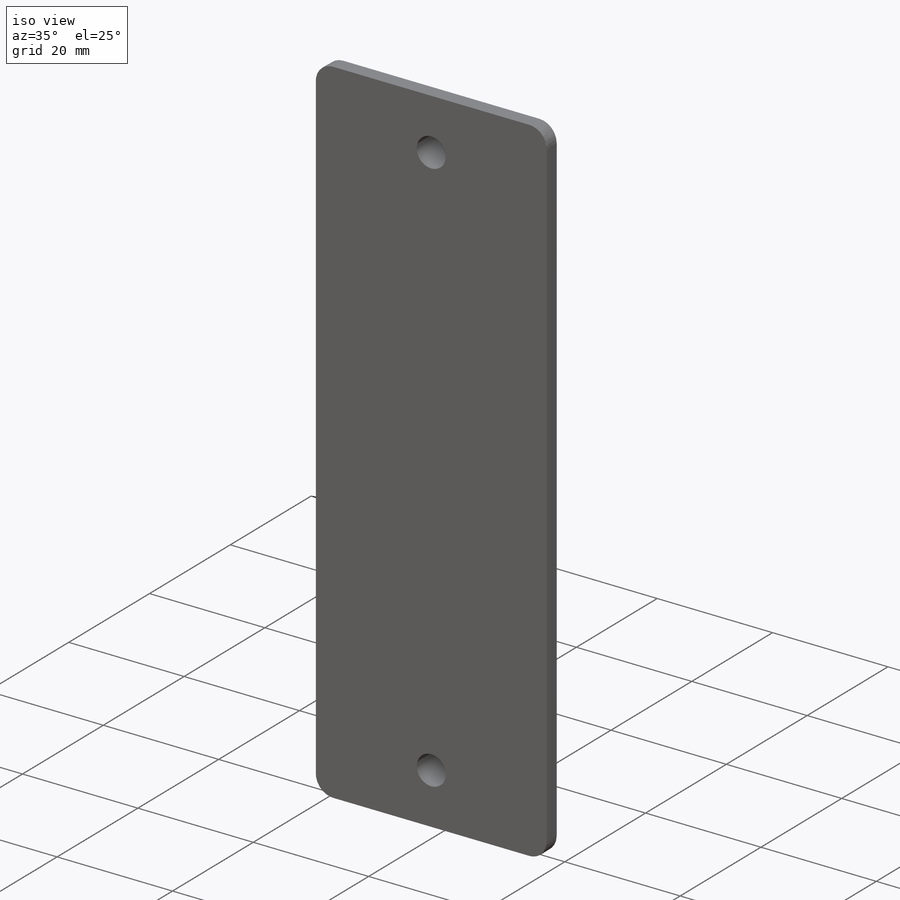
[diagram: iso view]
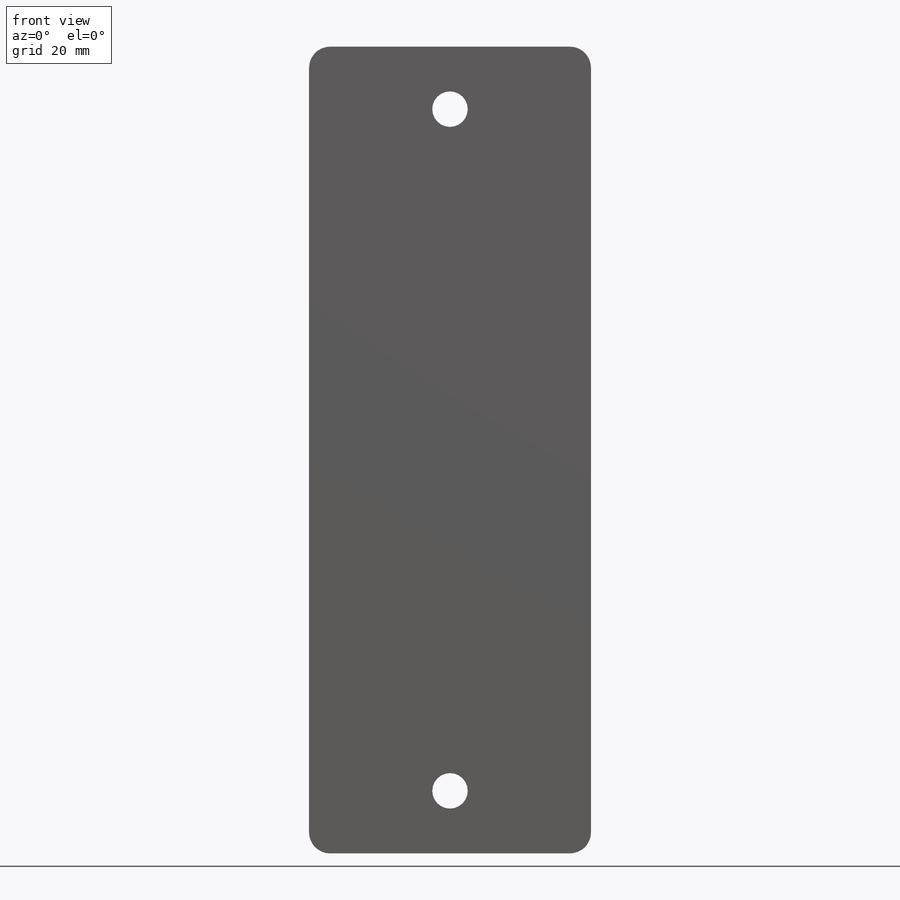
[diagram: front view]
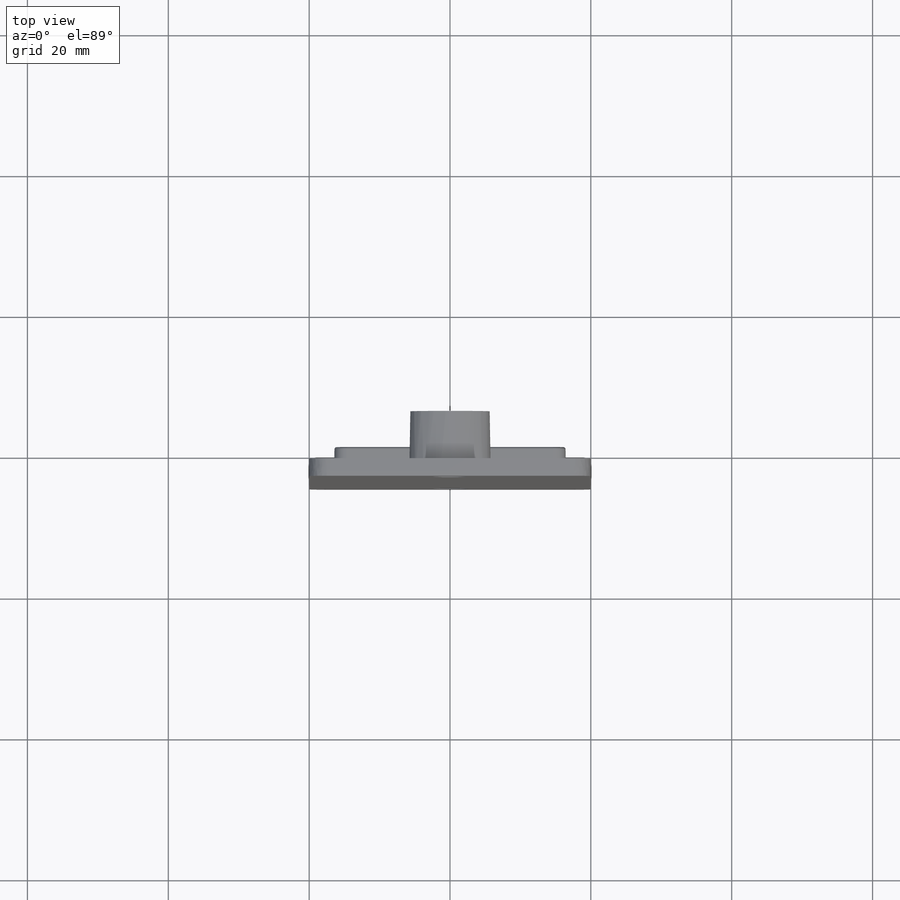
[diagram: top view]
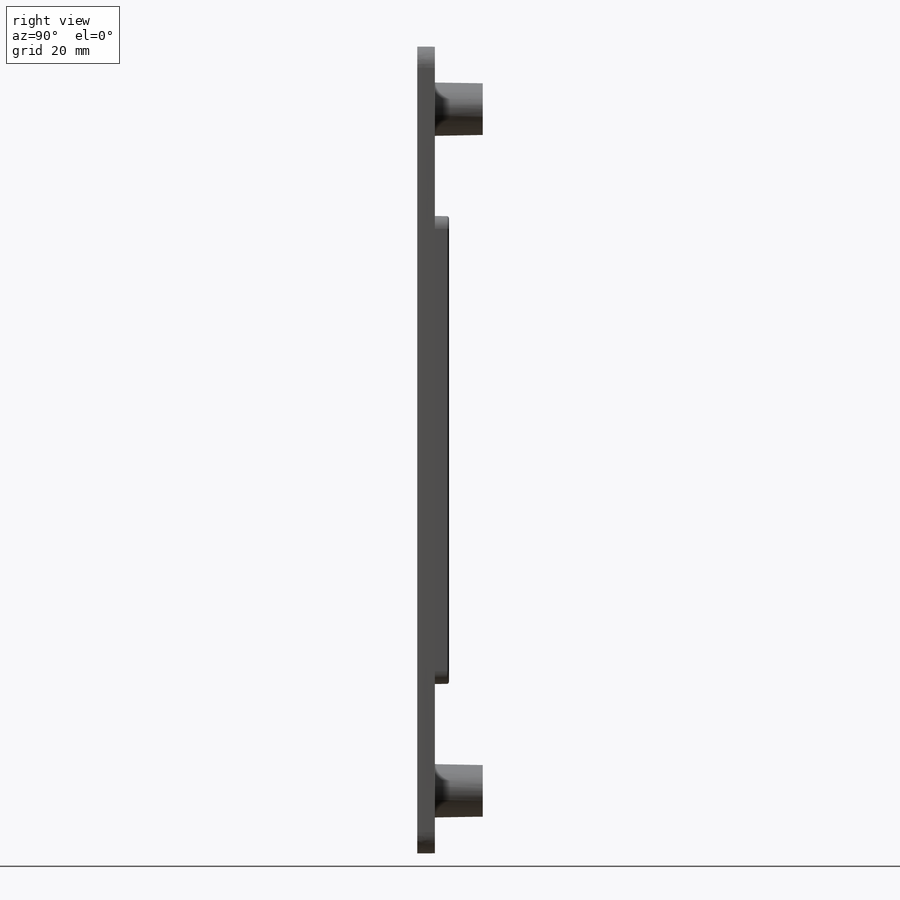
[diagram: right view]
SOLIDWORKS PART (.sldprt)
format: sldprt  version: not decoded by parser v0  size: 1,070,080 bytes
history: native  units: mm
features: sketch x28, extrude x12, cut_extrude x9, mirror x7, fillet x6, plane x3, chamfer x3, material x1, shell x1 (+9 scaffold rows collapsed)
feature tree (79):
  scaffold x9  (default folders/planes/origin — collapsed)
  material  "Material <not specified>"
  plane  "Спереди"
  plane  "Сверху"
  plane  "Справа"
  sketch  "Эскиз1"  dims[D3=2.0mm D1=33.2mm D2=66.8mm D4=0.2mm]
  extrude  "Бобышка-Вытянуть1"  Depth=3.8mm
  chamfer  "Фаска1"  Distance=1mm Angle=15deg
  fillet  "Скругление1"  Radius=0.5mm
  shell  "Оболочка1"  Thickness=2mm
  sketch  "Эскиз2"  dims[D1=10.2mm D2=24.0mm]
  cut_extrude  "Вырез-Вытянуть1"  Depth=3.8mm
  fillet  "Скругление2"  Radius=0.5mm
  sketch  "Эскиз5"  dims[D1=0.4mm]
  cut_extrude  "Вырез-Вытянуть2"  [1 undecoded]
  sketch  "Эскиз3"  dims[D1=1.7mm D3=1.0deg D5=2.0mm D6=1.0mm D7=5.0mm]
  fillet  "Скругление3"  Radius=2mm
  sketch  "Эскиз6"
  sketch  "Эскиз7"  dims[D1=40.0mm D2=24.0mm D4=40.0mm D3=0.5mm]
  extrude  "Бобышка-Вытянуть2"  Depth=1.2mm
  sketch  "Эскиз16"  dims[D1=40.0mm]
  fillet  "Скругление4"  Radius=3mm
  sketch  "Эскиз9"  dims[D3=0.5deg D5=2.0mm D6=1.0mm D7=5.0mm D1=1.0deg]
  sketch  "Эскиз10"  dims[c1.D1=3.0mm c1.D2=3.0mm c2.D1=1.75mm c2.D2=1.75mm c2.D3=1.0deg c2.D4=1.0deg c2.D5=2.0mm c2.D6=1.0mm c2.D7=5.0mm]
  mirror  "Зеркальное отражение24"
  sketch  "Эскиз11"  dims[D2=2.8mm D1=48.4mm]
  cut_extrude  "Вырез-Вытянуть3"  Depth=1.75mm
  sketch  "Эскиз12"  dims[D1=6.0mm D2=10.5mm]
  extrude  "Бобышка-Вытянуть3"  [1 undecoded]
  sketch  "Эскиз13"  dims[D3=1.0deg D5=3.0mm D6=1.0mm D7=5.0mm]
  sketch  "Эскиз14"  dims[D1=4.0mm D2=30.099mm]
  cut_extrude  "Вырез-Вытянуть4"  [1 undecoded]
  sketch  "Эскиз15"  dims[D1=3.95mm D3=1.0deg D5=2.0mm D6=1.0mm D7=5.0mm]
  chamfer  "Фаска3"  Distance=1.3mm
  mirror  "Уклон2"
  mirror  "Зеркальное отражение25"
  fillet  "Скругление5"  Radius=0.3mm
  sketch  "Sketch1"
  extrude  "Boss-Extrude2"  [1 undecoded]
  sketch  "Sketch3"
  extrude  "Boss-Extrude3"  [1 undecoded]
  sketch  "Sketch4"
  extrude  "Boss-Extrude4"  Depth=3mm
  mirror  "Mirror5"
  sketch  "Sketch5"
  cut_extrude  "Cut-Extrude1"  Depth=0.5mm
  sketch  "Sketch6"
  extrude  "Boss-Extrude5"  Depth=0.5mm
  mirror  "Mirror6"
  sketch  "Sketch7"
  extrude  "Boss-Extrude6"  Depth=1mm
  chamfer  "Chamfer1"  Distance=0.9mm Angle=45deg
  sketch  "Sketch8"
  extrude  "Boss-Extrude7"  [1 undecoded]
  fillet  "Fillet1"  Radius=1mm
  sketch  "Sketch10"
  cut_extrude  "Cut-Extrude2"  [1 undecoded]
  mirror  "Mirror8"
  sketch  "Sketch13"  dims[D1=7.6mm]
  extrude  "Boss-Extrude8"  Depth=6.8mm
  sketch  "Sketch14"  dims[D1=5.2mm]
  cut_extrude  "Cut-Extrude3"  Depth=27mm
  sketch  "Sketch15"
  extrude  "Boss-Extrude9"  [1 undecoded]
  mirror  "Mirror7"
  sketch  "Sketch16"  dims[D1=3.8mm]
  cut_extrude  "Cut-Extrude4"  Depth=0.5mm
  sketch  "Sketch17"
  cut_extrude  "Cut-Extrude5"  Depth=0.55mm
  sketch  "Sketch18"
  extrude  "Boss-Extrude10"  [1 undecoded]
decode coverage: 38 of 66 modeling features carry decoded parameters
note: 9 parameter values undecoded
summary: no parameter record found for 9 features
note: suppression state not decoded; provenance and decode notes live in map.json
